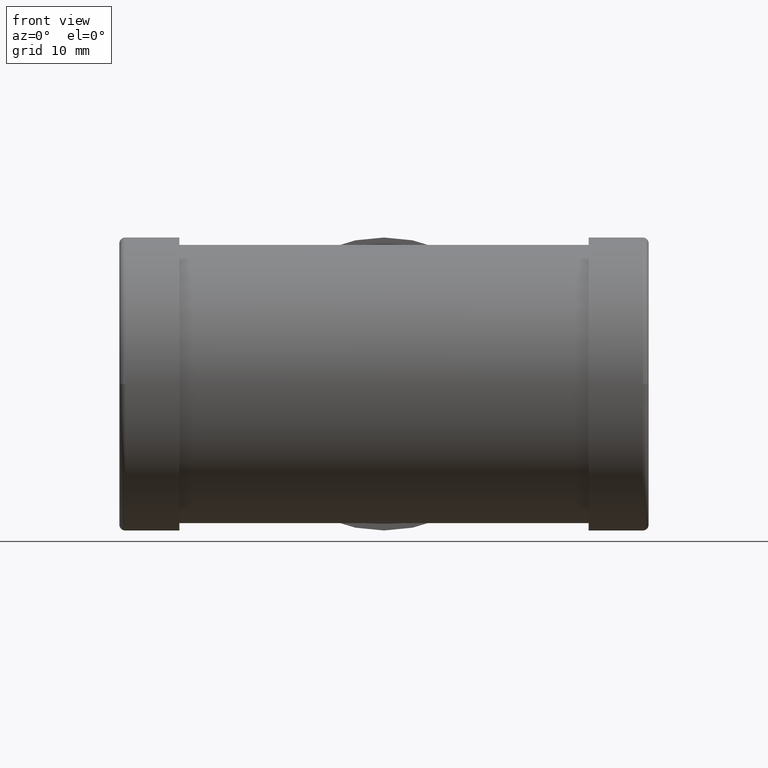
[diagram: clean part render]
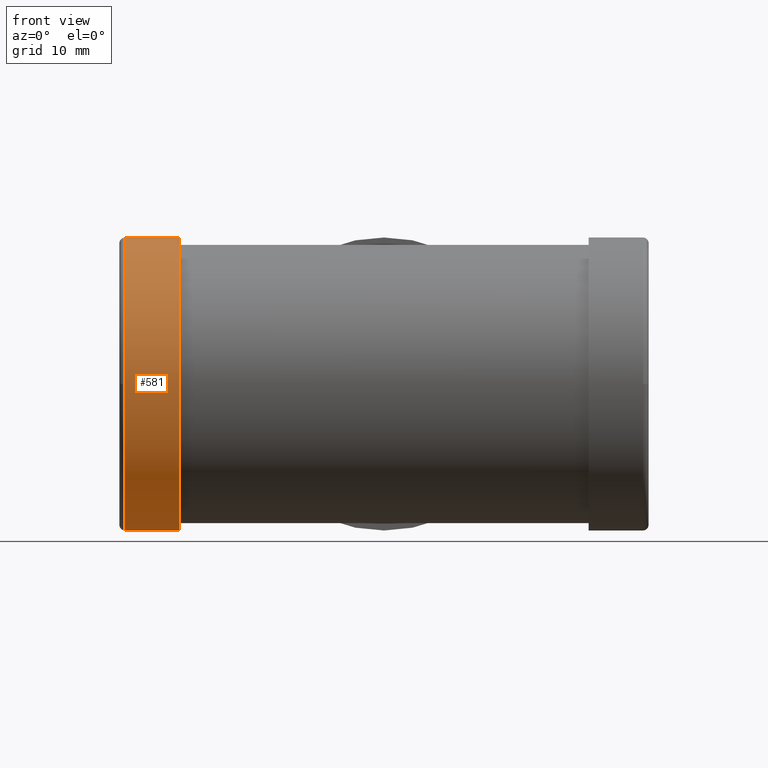
[diagram: same view with one face highlighted and labeled with its STEP entity id]
A machine part, front view. The second image highlights one B-rep face of the part: STEP entity #581.
In plain terms, the highlighted cylindrical surface (partial cylindrical patch) has radius 15.5 mm, axis along (-1, 0, 0).
Its self-contained STEP definition (entity closure, byte-faithful):
#39 = DIRECTION ( 'NONE',  ( 0.000000000000000000, 0.000000000000000000, 1.000000000000000000 ) ) ;
#86 = AXIS2_PLACEMENT_3D ( 'NONE', #986, #1188, #283 ) ;
#132 = ORIENTED_EDGE ( 'NONE', *, *, #293, .T. ) ;
#142 = CARTESIAN_POINT ( 'NONE',  ( -21.65000000000000213, 2.267717129578615398E-13, 0.000000000000000000 ) ) ;
#162 = CARTESIAN_POINT ( 'NONE',  ( -21.65000000000000213, 2.587590028916416966E-13, -15.50000000000000000 ) ) ;
#166 = CARTESIAN_POINT ( 'NONE',  ( -27.39523809523809916, 2.869498877480649627E-13, 0.000000000000000000 ) ) ;
#167 = VERTEX_POINT ( 'NONE', #607 ) ;
#195 = VECTOR ( 'NONE', #292, 1000.000000000000000 ) ;
#209 = ORIENTED_EDGE ( 'NONE', *, *, #586, .T. ) ;
#230 = CARTESIAN_POINT ( 'NONE',  ( -21.65000000000000213, 2.267717129578615398E-13, 0.000000000000000000 ) ) ;
#237 = CIRCLE ( 'NONE', #86, 15.50000000000000000 ) ;
#283 = DIRECTION ( 'NONE',  ( -1.052025849947225024E-14, -1.000000000000000000, 0.000000000000000000 ) ) ;
#292 = DIRECTION ( 'NONE',  ( -1.000000000000000000, 1.047444401652940007E-14, 0.000000000000000000 ) ) ;
#293 = EDGE_CURVE ( 'NONE', #991, #167, #409, .T. ) ;
#307 = DIRECTION ( 'NONE',  ( -1.000000000000000000, 1.047444401652940007E-14, 0.000000000000000000 ) ) ;
#310 = CARTESIAN_POINT ( 'NONE',  ( -21.65000000000000213, 2.286699154965399472E-13, -15.50000000000000000 ) ) ;
#338 = CYLINDRICAL_SURFACE ( 'NONE', #1236, 15.50000000000000000 ) ;
#374 = CARTESIAN_POINT ( 'NONE',  ( -27.39523809523825904, -15.49999999999971401, 0.000000000000000000 ) ) ;
#385 = DIRECTION ( 'NONE',  ( -1.052025849947225024E-14, -1.000000000000000000, 0.000000000000000000 ) ) ;
#409 = LINE ( 'NONE', #809, #835 ) ;
#474 = CARTESIAN_POINT ( 'NONE',  ( -21.65000000000000213, 2.568608003529640717E-13, 15.50000000000000000 ) ) ;
#496 = CARTESIAN_POINT ( 'NONE',  ( -27.39523809523809916, 2.587590028916418985E-13, -15.50000000000000000 ) ) ;
#521 = VERTEX_POINT ( 'NONE', #162 ) ;
#581 = ADVANCED_FACE ( 'NONE', ( #1046 ), #338, .T. ) ;
#586 = EDGE_CURVE ( 'NONE', #598, #619, #237, .T. ) ;
#598 = VERTEX_POINT ( 'NONE', #374 ) ;
#607 = CARTESIAN_POINT ( 'NONE',  ( -27.39523809523809916, 2.568608003529634659E-13, 15.50000000000000000 ) ) ;
#619 = VERTEX_POINT ( 'NONE', #496 ) ;
#700 = EDGE_CURVE ( 'NONE', #521, #619, #1195, .T. ) ;
#809 = CARTESIAN_POINT ( 'NONE',  ( -21.65000000000000213, 2.267717129578615398E-13, 15.50000000000000000 ) ) ;
#835 = VECTOR ( 'NONE', #307, 1000.000000000000000 ) ;
#921 = EDGE_CURVE ( 'NONE', #521, #991, #1279, .T. ) ;
#946 = ORIENTED_EDGE ( 'NONE', *, *, #1009, .T. ) ;
#986 = CARTESIAN_POINT ( 'NONE',  ( -27.39523809523809916, 2.869498877480649627E-13, 0.000000000000000000 ) ) ;
#991 = VERTEX_POINT ( 'NONE', #474 ) ;
#993 = DIRECTION ( 'NONE',  ( 0.000000000000000000, 0.000000000000000000, 1.000000000000000000 ) ) ;
#994 = CIRCLE ( 'NONE', #1171, 15.50000000000000000 ) ;
#1003 = EDGE_LOOP ( 'NONE', ( #1221, #1080, #132, #946, #209 ) ) ;
#1009 = EDGE_CURVE ( 'NONE', #167, #598, #994, .T. ) ;
#1046 = FACE_OUTER_BOUND ( 'NONE', #1003, .T. ) ;
#1055 = DIRECTION ( 'NONE',  ( -1.000000000000000000, 1.047444401652940007E-14, 0.000000000000000000 ) ) ;
#1080 = ORIENTED_EDGE ( 'NONE', *, *, #921, .T. ) ;
#1081 = DIRECTION ( 'NONE',  ( -1.000000000000000000, 1.047444401652940007E-14, 0.000000000000000000 ) ) ;
#1098 = DIRECTION ( 'NONE',  ( 1.000000000000000000, -1.047444401652940007E-14, -0.000000000000000000 ) ) ;
#1128 = AXIS2_PLACEMENT_3D ( 'NONE', #230, #1055, #39 ) ;
#1171 = AXIS2_PLACEMENT_3D ( 'NONE', #166, #1098, #385 ) ;
#1188 = DIRECTION ( 'NONE',  ( 1.000000000000000000, -1.047444401652940007E-14, -0.000000000000000000 ) ) ;
#1195 = LINE ( 'NONE', #310, #195 ) ;
#1221 = ORIENTED_EDGE ( 'NONE', *, *, #700, .F. ) ;
#1236 = AXIS2_PLACEMENT_3D ( 'NONE', #142, #1081, #993 ) ;
#1279 = CIRCLE ( 'NONE', #1128, 15.50000000000000000 ) ;